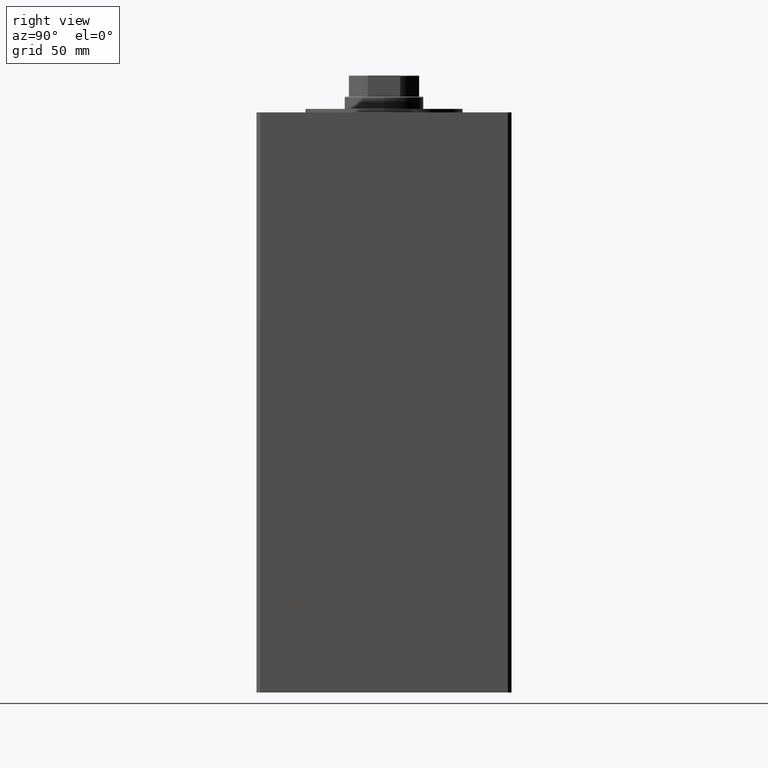
[diagram: clean part render]
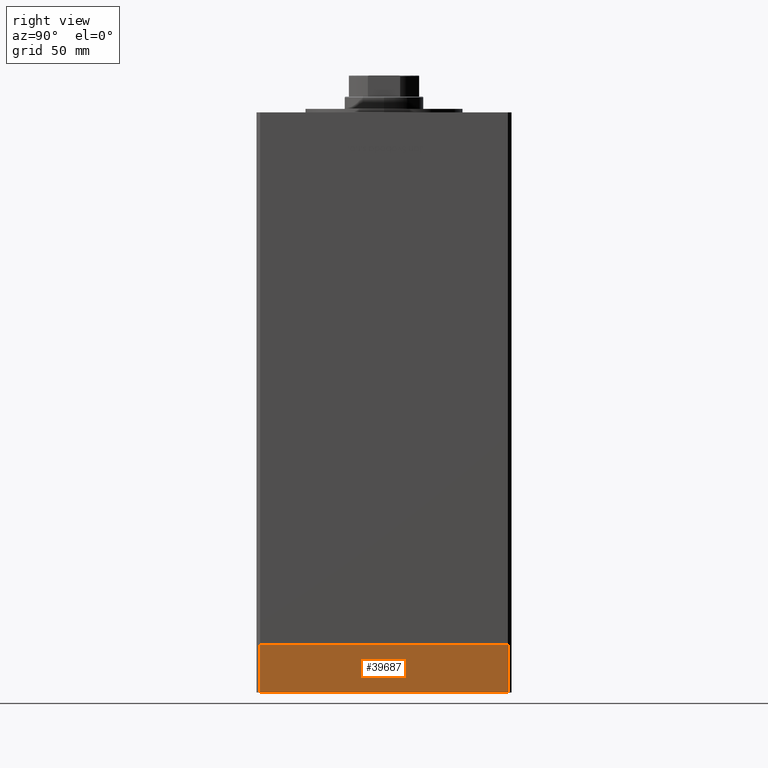
[diagram: same view with one face highlighted and labeled with its STEP entity id]
A machine part, right view. The second image highlights one B-rep face of the part: STEP entity #39687.
In plain terms, the highlighted planar face has unit normal (1, 0, 0).
Its self-contained STEP definition (entity closure, byte-faithful):
#2425 = ORIENTED_EDGE ( 'NONE', *, *, #44740, .T. ) ;
#3430 = VERTEX_POINT ( 'NONE', #18721 ) ;
#4101 = CARTESIAN_POINT ( 'NONE',  ( -85.00000000000001421, 70.49999999999997158, -27.00000000000000000 ) ) ;
#5545 = VERTEX_POINT ( 'NONE', #38673 ) ;
#9915 = DIRECTION ( 'NONE',  ( 0.000000000000000000, -1.000000000000000000, 0.000000000000000000 ) ) ;
#12395 = DIRECTION ( 'NONE',  ( -1.000000000000000000, 0.000000000000000000, 0.000000000000000000 ) ) ;
#12736 = CARTESIAN_POINT ( 'NONE',  ( -85.00000000000001421, 70.49999999999997158, -27.00000000000000000 ) ) ;
#14443 = EDGE_CURVE ( 'NONE', #17711, #3430, #41826, .T. ) ;
#16076 = FACE_OUTER_BOUND ( 'NONE', #20138, .T. ) ;
#16210 = VECTOR ( 'NONE', #32533, 1000.000000000000000 ) ;
#16345 = PLANE ( 'NONE',  #24606 ) ;
#17711 = VERTEX_POINT ( 'NONE', #4101 ) ;
#18224 = ORIENTED_EDGE ( 'NONE', *, *, #14443, .T. ) ;
#18721 = CARTESIAN_POINT ( 'NONE',  ( -85.00000000000001421, -70.50000000000000000, -27.00000000000000000 ) ) ;
#19676 = VECTOR ( 'NONE', #9915, 1000.000000000000000 ) ;
#20138 = EDGE_LOOP ( 'NONE', ( #35151, #37697, #18224, #2425 ) ) ;
#20816 = DIRECTION ( 'NONE',  ( 0.000000000000000000, -1.000000000000000000, 0.000000000000000000 ) ) ;
#22294 = CARTESIAN_POINT ( 'NONE',  ( -85.00000000000001421, 70.49999999999997158, -27.00000000000000000 ) ) ;
#23010 = VECTOR ( 'NONE', #46591, 1000.000000000000000 ) ;
#23750 = EDGE_CURVE ( 'NONE', #5545, #45787, #41114, .T. ) ;
#24152 = VECTOR ( 'NONE', #20816, 1000.000000000000000 ) ;
#24606 = AXIS2_PLACEMENT_3D ( 'NONE', #36636, #12395, #28474 ) ;
#26560 = CARTESIAN_POINT ( 'NONE',  ( -85.00000000000001421, -70.50000000000000000, -27.00000000000000000 ) ) ;
#28474 = DIRECTION ( 'NONE',  ( 0.000000000000000000, 0.000000000000000000, 1.000000000000000000 ) ) ;
#29002 = CARTESIAN_POINT ( 'NONE',  ( -85.00000000000001421, 70.49999999999997158, 0.000000000000000000 ) ) ;
#30513 = LINE ( 'NONE', #26560, #23010 ) ;
#32533 = DIRECTION ( 'NONE',  ( 0.000000000000000000, 0.000000000000000000, 1.000000000000000000 ) ) ;
#32740 = CARTESIAN_POINT ( 'NONE',  ( -85.00000000000001421, -70.50000000000000000, 0.000000000000000000 ) ) ;
#35151 = ORIENTED_EDGE ( 'NONE', *, *, #23750, .F. ) ;
#36636 = CARTESIAN_POINT ( 'NONE',  ( -85.00000000000001421, 70.49999999999997158, -27.00000000000000000 ) ) ;
#37697 = ORIENTED_EDGE ( 'NONE', *, *, #42129, .F. ) ;
#38673 = CARTESIAN_POINT ( 'NONE',  ( -85.00000000000001421, 70.49999999999997158, 0.000000000000000000 ) ) ;
#39687 = ADVANCED_FACE ( 'NONE', ( #16076 ), #16345, .T. ) ;
#41114 = LINE ( 'NONE', #29002, #24152 ) ;
#41826 = LINE ( 'NONE', #22294, #19676 ) ;
#42129 = EDGE_CURVE ( 'NONE', #17711, #5545, #43861, .T. ) ;
#43861 = LINE ( 'NONE', #12736, #16210 ) ;
#44740 = EDGE_CURVE ( 'NONE', #3430, #45787, #30513, .T. ) ;
#45787 = VERTEX_POINT ( 'NONE', #32740 ) ;
#46591 = DIRECTION ( 'NONE',  ( 0.000000000000000000, 0.000000000000000000, 1.000000000000000000 ) ) ;